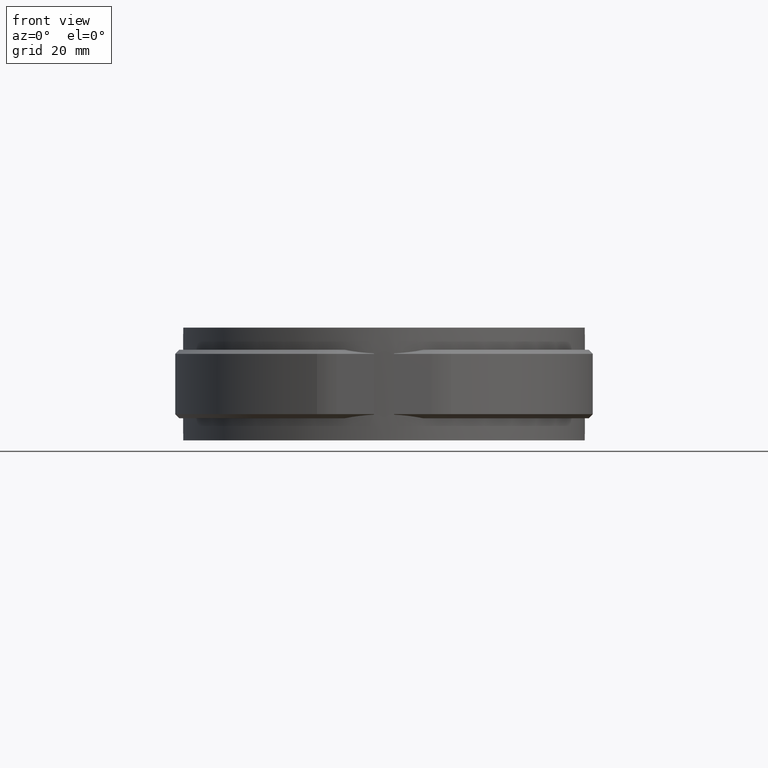
[diagram: clean part render]
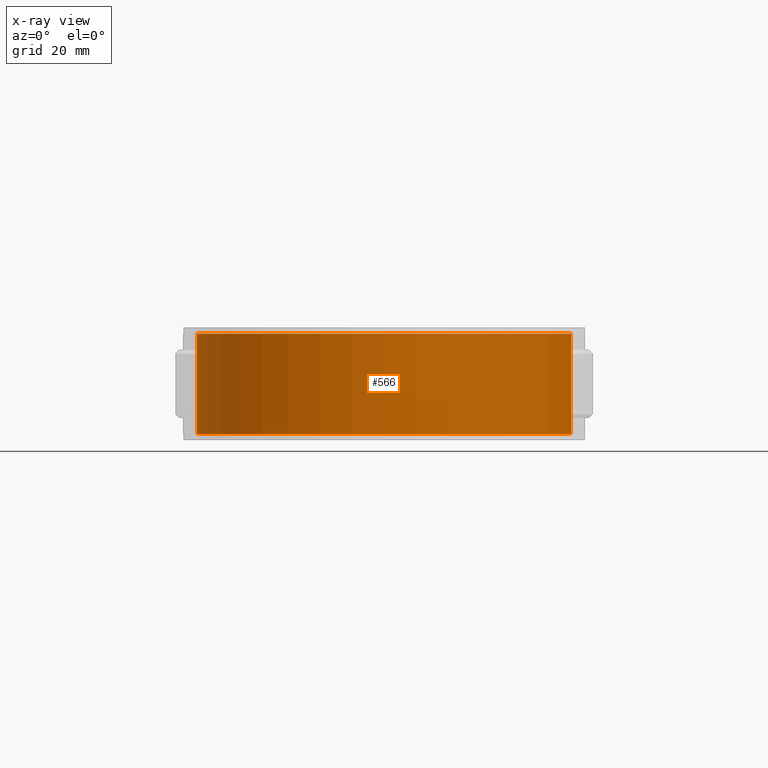
[diagram: x-ray — body ghosted, one internal face saturated and labeled with its STEP entity id]
A machine part, front view, then the same camera in x-ray: the body is ghosted and one INTERNAL B-rep face — a face not visible from any outside direction — is saturated and labeled: STEP entity #566.
In plain terms, the highlighted cylindrical surface (partial cylindrical patch) has radius 46.5 mm, axis along (0, 0, 1).
Its self-contained STEP definition (entity closure, byte-faithful):
#566 = ADVANCED_FACE( '', ( #1062 ), #1063, .T. );
#1062 = FACE_OUTER_BOUND( '', #2426, .T. );
#1063 = CYLINDRICAL_SURFACE( '', #2427, 46.5000000000000 );
#2426 = EDGE_LOOP( '', ( #5320, #5321, #5322, #5323 ) );
#2427 = AXIS2_PLACEMENT_3D( '', #5324, #5325, #5326 );
#5320 = ORIENTED_EDGE( '', *, *, #7871, .T. );
#5321 = ORIENTED_EDGE( '', *, *, #7880, .T. );
#5322 = ORIENTED_EDGE( '', *, *, #7925, .F. );
#5323 = ORIENTED_EDGE( '', *, *, #7830, .F. );
#5324 = CARTESIAN_POINT( '', ( 0.000000000000000, -6.93889390390723E-015, 14.0000000000000 ) );
#5325 = DIRECTION( '', ( 0.000000000000000, 0.000000000000000, 1.00000000000000 ) );
#5326 = DIRECTION( '', ( 0.107526881720430, 0.994202177480758, 0.000000000000000 ) );
#7830 = EDGE_CURVE( '', #9043, #9045, #9046, .T. );
#7871 = EDGE_CURVE( '', #9043, #9113, #9115, .T. );
#7880 = EDGE_CURVE( '', #9113, #9128, #9130, .T. );
#7925 = EDGE_CURVE( '', #9045, #9128, #9205, .T. );
#9043 = VERTEX_POINT( '', #12752 );
#9045 = VERTEX_POINT( '', #12754 );
#9046 = CIRCLE( '', #12755, 46.5000000000000 );
#9113 = VERTEX_POINT( '', #12924 );
#9115 = LINE( '', #12926, #12927 );
#9128 = VERTEX_POINT( '', #12947 );
#9130 = CIRCLE( '', #12949, 46.5000000000000 );
#9205 = LINE( '', #13062, #13063 );
#12752 = CARTESIAN_POINT( '', ( -6.57575757575752, 46.0326993810364, 12.5000000000000 ) );
#12754 = CARTESIAN_POINT( '', ( 6.57575757575758, 46.0326993810363, 12.5000000000000 ) );
#12755 = AXIS2_PLACEMENT_3D( '', #14935, #14936, #14937 );
#12924 = CARTESIAN_POINT( '', ( -6.57575757575757, 46.0326993810364, -12.5000000000000 ) );
#12926 = CARTESIAN_POINT( '', ( -6.57575757575757, 46.0326993810364, 14.0000000000000 ) );
#12927 = VECTOR( '', #14974, 1000.00000000000 );
#12947 = CARTESIAN_POINT( '', ( 6.57575757575757, 46.0326993810363, -12.5000000000000 ) );
#12949 = AXIS2_PLACEMENT_3D( '', #14985, #14986, #14987 );
#13062 = CARTESIAN_POINT( '', ( 6.57575757575757, 46.0326993810363, 14.0000000000000 ) );
#13063 = VECTOR( '', #15050, 1000.00000000000 );
#14935 = CARTESIAN_POINT( '', ( 8.67361737988404E-016, -6.93889390390723E-015, 12.5000000000000 ) );
#14936 = DIRECTION( '', ( 0.000000000000000, 0.000000000000000, 1.00000000000000 ) );
#14937 = DIRECTION( '', ( 1.00000000000000, -8.32667268468867E-017, 0.000000000000000 ) );
#14974 = DIRECTION( '', ( 0.000000000000000, 0.000000000000000, -1.00000000000000 ) );
#14985 = CARTESIAN_POINT( '', ( 8.67361737988404E-016, -6.93889390390723E-015, -12.5000000000000 ) );
#14986 = DIRECTION( '', ( 0.000000000000000, 0.000000000000000, 1.00000000000000 ) );
#14987 = DIRECTION( '', ( 1.00000000000000, -8.32667268468867E-017, 0.000000000000000 ) );
#15050 = DIRECTION( '', ( 0.000000000000000, 0.000000000000000, -1.00000000000000 ) );